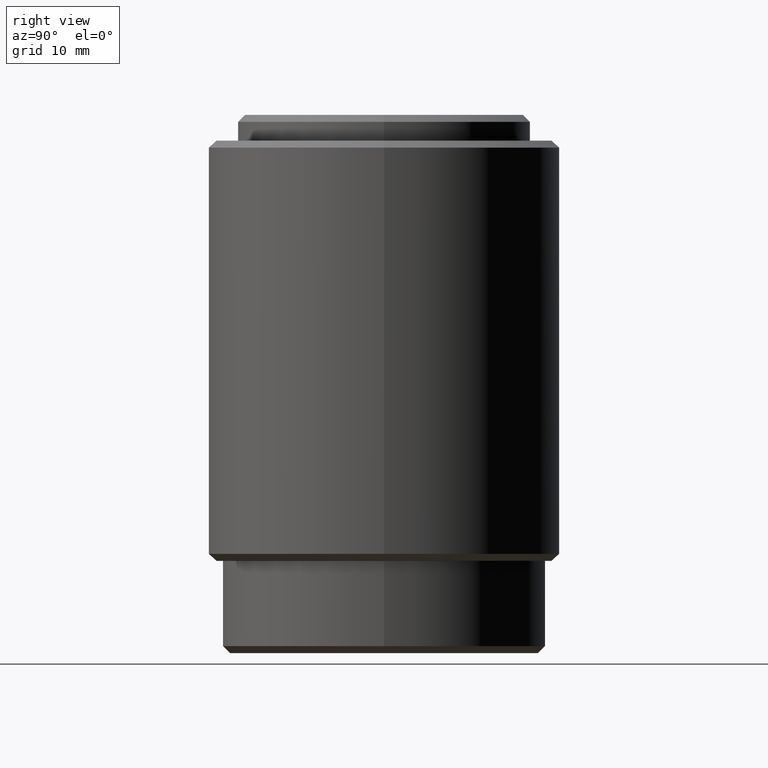
[diagram: clean part render]
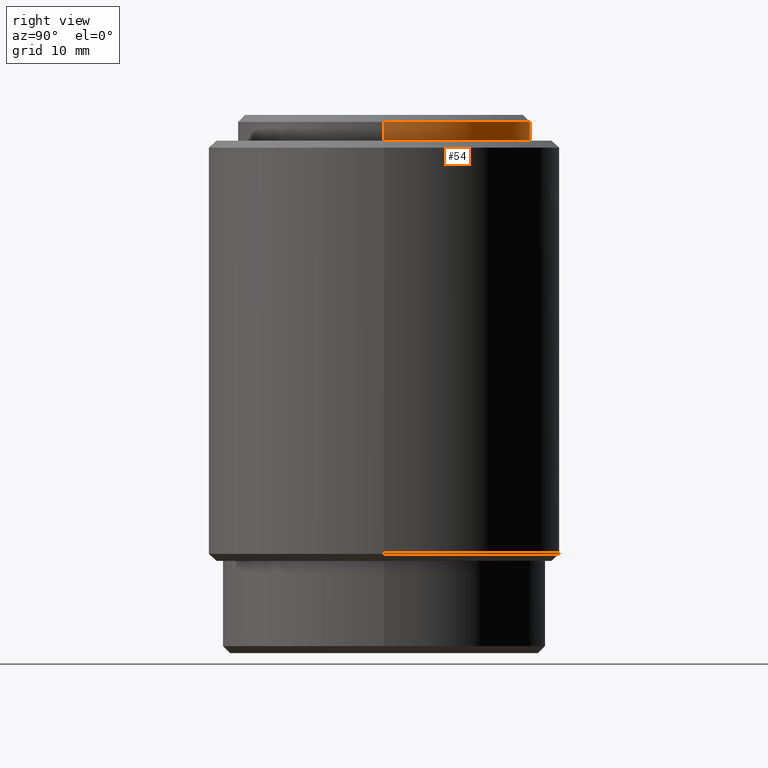
[diagram: same view with one face highlighted and labeled with its STEP entity id]
A machine part, right view. The second image highlights one B-rep face of the part: STEP entity #54.
In plain terms, the highlighted cylindrical surface (partial cylindrical patch) has radius 12.5 mm, axis along (-0, -0, -1).
Its self-contained STEP definition (entity closure, byte-faithful):
#3 = EDGE_CURVE ( 'NONE', #270, #249, #449, .T. ) ;
#18 = LINE ( 'NONE', #93, #224 ) ;
#41 = EDGE_CURVE ( 'NONE', #532, #300, #115, .T. ) ;
#46 = CARTESIAN_POINT ( 'NONE',  ( -12.50000000000000000, 0.0000000000000000000, 43.89999999999999100 ) ) ;
#54 = ADVANCED_FACE ( 'NONE', ( #310 ), #414, .T. ) ;
#61 = EDGE_CURVE ( 'NONE', #532, #249, #209, .T. ) ;
#93 = CARTESIAN_POINT ( 'NONE',  ( 12.50000000000000000, 1.530808498934191500E-015, 46.09999999999999400 ) ) ;
#101 = VECTOR ( 'NONE', #430, 1000.000000000000000 ) ;
#102 = AXIS2_PLACEMENT_3D ( 'NONE', #522, #349, #195 ) ;
#115 = CIRCLE ( 'NONE', #154, 12.50000000000000000 ) ;
#129 = CARTESIAN_POINT ( 'NONE',  ( 12.50000000000000000, 1.530808498934191500E-015, 43.89999999999999100 ) ) ;
#148 = ORIENTED_EDGE ( 'NONE', *, *, #3, .T. ) ;
#154 = AXIS2_PLACEMENT_3D ( 'NONE', #263, #515, #227 ) ;
#189 = CARTESIAN_POINT ( 'NONE',  ( -12.50000000000000000, 0.0000000000000000000, 46.09999999999999400 ) ) ;
#192 = DIRECTION ( 'NONE',  ( -1.000000000000000000, 0.0000000000000000000, 0.0000000000000000000 ) ) ;
#195 = DIRECTION ( 'NONE',  ( 1.000000000000000000, 0.0000000000000000000, 0.0000000000000000000 ) ) ;
#209 = LINE ( 'NONE', #189, #101 ) ;
#214 = CARTESIAN_POINT ( 'NONE',  ( -12.50000000000000000, 0.0000000000000000000, 45.49999999999997900 ) ) ;
#218 = ORIENTED_EDGE ( 'NONE', *, *, #61, .F. ) ;
#224 = VECTOR ( 'NONE', #372, 1000.000000000000000 ) ;
#227 = DIRECTION ( 'NONE',  ( 1.000000000000000000, 0.0000000000000000000, 0.0000000000000000000 ) ) ;
#249 = VERTEX_POINT ( 'NONE', #46 ) ;
#263 = CARTESIAN_POINT ( 'NONE',  ( 0.0000000000000000000, 0.0000000000000000000, 45.49999999999997900 ) ) ;
#270 = VERTEX_POINT ( 'NONE', #129 ) ;
#300 = VERTEX_POINT ( 'NONE', #443 ) ;
#306 = DIRECTION ( 'NONE',  ( -0.0000000000000000000, -0.0000000000000000000, -1.000000000000000000 ) ) ;
#310 = FACE_OUTER_BOUND ( 'NONE', #476, .T. ) ;
#349 = DIRECTION ( 'NONE',  ( 0.0000000000000000000, 0.0000000000000000000, 1.000000000000000000 ) ) ;
#372 = DIRECTION ( 'NONE',  ( -0.0000000000000000000, -0.0000000000000000000, -1.000000000000000000 ) ) ;
#414 = CYLINDRICAL_SURFACE ( 'NONE', #439, 12.50000000000000000 ) ;
#430 = DIRECTION ( 'NONE',  ( -0.0000000000000000000, -0.0000000000000000000, -1.000000000000000000 ) ) ;
#439 = AXIS2_PLACEMENT_3D ( 'NONE', #473, #306, #192 ) ;
#443 = CARTESIAN_POINT ( 'NONE',  ( 12.50000000000000000, 1.530808498934191500E-015, 45.49999999999997900 ) ) ;
#449 = CIRCLE ( 'NONE', #102, 12.50000000000000000 ) ;
#452 = ORIENTED_EDGE ( 'NONE', *, *, #512, .T. ) ;
#473 = CARTESIAN_POINT ( 'NONE',  ( 0.0000000000000000000, 0.0000000000000000000, 46.09999999999999400 ) ) ;
#476 = EDGE_LOOP ( 'NONE', ( #516, #452, #148, #218 ) ) ;
#512 = EDGE_CURVE ( 'NONE', #300, #270, #18, .T. ) ;
#515 = DIRECTION ( 'NONE',  ( 0.0000000000000000000, 0.0000000000000000000, -1.000000000000000000 ) ) ;
#516 = ORIENTED_EDGE ( 'NONE', *, *, #41, .T. ) ;
#522 = CARTESIAN_POINT ( 'NONE',  ( 0.0000000000000000000, 0.0000000000000000000, 43.89999999999999100 ) ) ;
#532 = VERTEX_POINT ( 'NONE', #214 ) ;